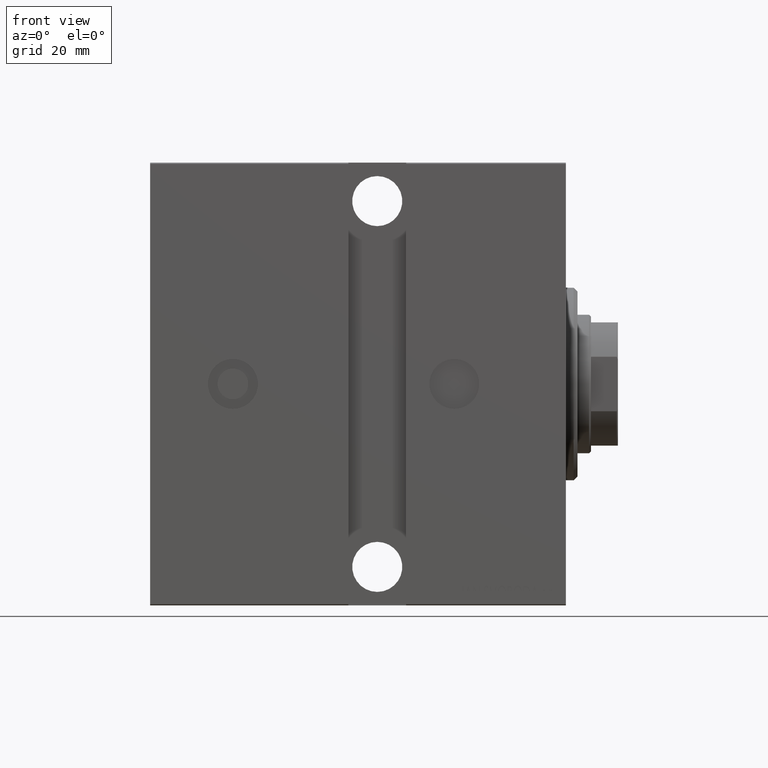
[diagram: clean part render]
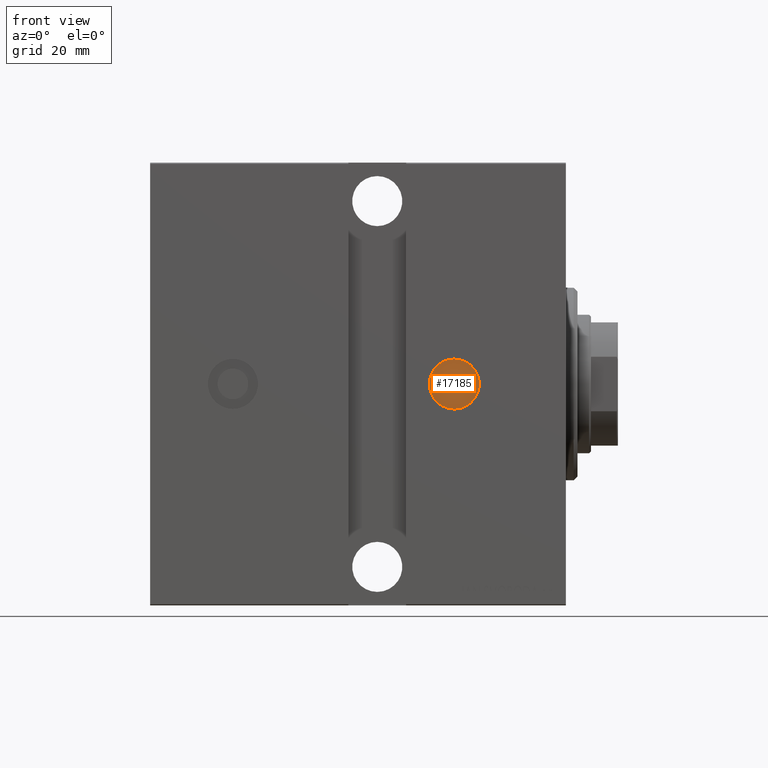
[diagram: same view with one face highlighted and labeled with its STEP entity id]
A machine part, front view. The second image highlights one B-rep face of the part: STEP entity #17185.
In plain terms, the highlighted planar face has unit normal (-0, -1, 0).
Its self-contained STEP definition (entity closure, byte-faithful):
#3661 = DIRECTION ( 'NONE',  ( 0.000000000000000000, 0.000000000000000000, 1.000000000000000000 ) ) ;
#6374 = EDGE_CURVE ( 'NONE', #27068, #31309, #29672, .T. ) ;
#7452 = ORIENTED_EDGE ( 'NONE', *, *, #25029, .T. ) ;
#9485 = DIRECTION ( 'NONE',  ( 2.465190328815661345E-32, 1.000000000000000000, 1.241259582663617744E-16 ) ) ;
#13200 = CARTESIAN_POINT ( 'NONE',  ( 29.00000000000000000, 44.00000000000001421, 6.499999999999997335 ) ) ;
#14052 = FACE_OUTER_BOUND ( 'NONE', #35856, .T. ) ;
#15548 = AXIS2_PLACEMENT_3D ( 'NONE', #33808, #27361, #24137 ) ;
#17185 = ADVANCED_FACE ( 'NONE', ( #14052 ), #33377, .T. ) ;
#17919 = DIRECTION ( 'NONE',  ( 0.000000000000000000, 0.000000000000000000, 1.000000000000000000 ) ) ;
#19157 = CARTESIAN_POINT ( 'NONE',  ( 29.00000000000000000, 44.00000000000001421, -1.261617073437675287E-16 ) ) ;
#21084 = CIRCLE ( 'NONE', #25227, 6.499999999999997335 ) ;
#24137 = DIRECTION ( 'NONE',  ( 0.000000000000000000, -1.241259582663617744E-16, 1.000000000000000000 ) ) ;
#25029 = EDGE_CURVE ( 'NONE', #31309, #27068, #21084, .T. ) ;
#25227 = AXIS2_PLACEMENT_3D ( 'NONE', #36828, #27808, #17919 ) ;
#27068 = VERTEX_POINT ( 'NONE', #41823 ) ;
#27361 = DIRECTION ( 'NONE',  ( 2.465190328815661345E-32, 1.000000000000000000, 1.241259582663617744E-16 ) ) ;
#27808 = DIRECTION ( 'NONE',  ( 2.465190328815661345E-32, 1.000000000000000000, 1.241259582663617744E-16 ) ) ;
#28781 = ORIENTED_EDGE ( 'NONE', *, *, #6374, .T. ) ;
#29672 = CIRCLE ( 'NONE', #31755, 6.499999999999997335 ) ;
#31309 = VERTEX_POINT ( 'NONE', #13200 ) ;
#31755 = AXIS2_PLACEMENT_3D ( 'NONE', #19157, #9485, #3661 ) ;
#33377 = PLANE ( 'NONE',  #15548 ) ;
#33808 = CARTESIAN_POINT ( 'NONE',  ( 1.109335647967048027E-30, 44.00000000000001421, 5.459506414642513575E-15 ) ) ;
#35856 = EDGE_LOOP ( 'NONE', ( #7452, #28781 ) ) ;
#36828 = CARTESIAN_POINT ( 'NONE',  ( 29.00000000000000000, 44.00000000000001421, -1.261617073437675287E-16 ) ) ;
#41823 = CARTESIAN_POINT ( 'NONE',  ( 29.00000000000000000, 44.00000000000001421, -6.499999999999997335 ) ) ;